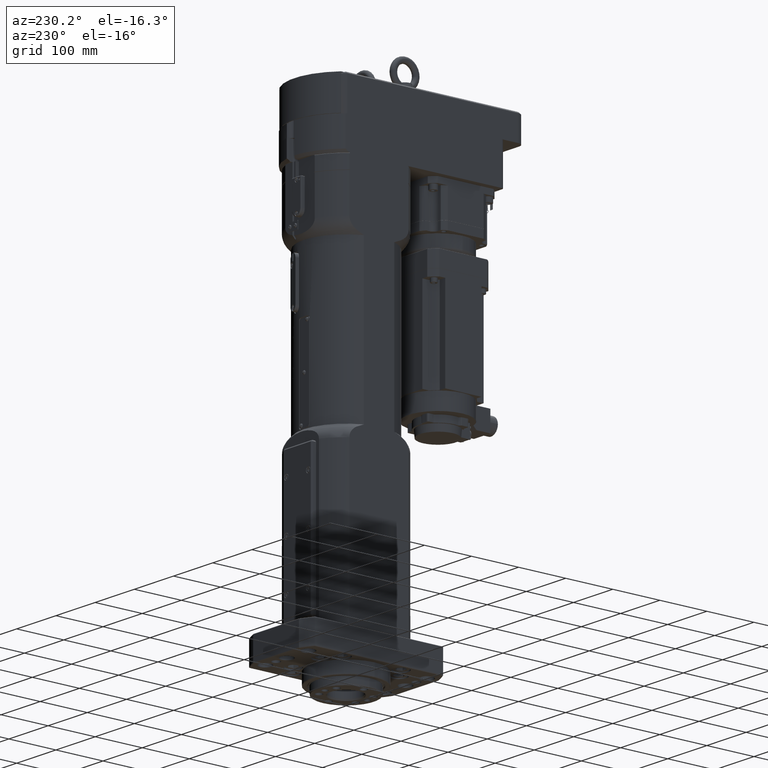
[diagram: clean part render]
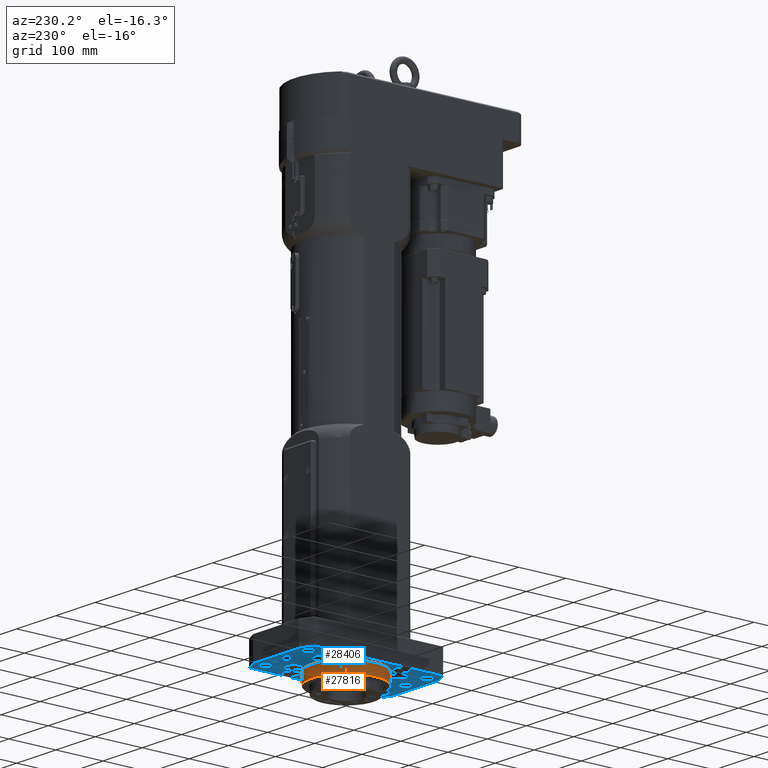
[diagram: same view with the hole feature highlighted: cylindrical wall and planar end face, labeled with their STEP entity ids]
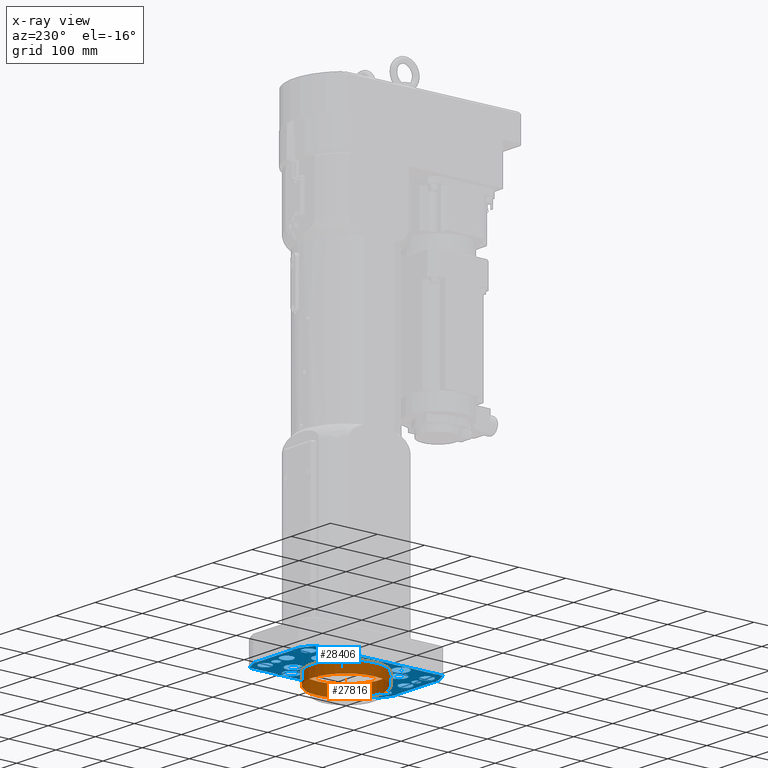
[diagram: x-ray of the same camera — body ghosted, the hole faces saturated]
A machine part, auxiliary view. The highlighted faces form one hole feature of diameter 145 mm: the cylindrical wall (entity #27816, orange) and its adjacent planar end face (entity #28406, blue) — they share a circular edge in the B-rep.
The next image is the same camera in x-ray (body ghosted, the hole faces saturated) — the bore reads through the body.
Wall:
#4697=FACE_BOUND('',#8042,.T.);
#5134=CYLINDRICAL_SURFACE('',#30303,72.5);
#6157=FACE_OUTER_BOUND('',#8041,.T.);
#8041=EDGE_LOOP('',(#20331));
#8042=EDGE_LOOP('',(#20332));
#9914=CIRCLE('',#30302,72.5);
#9915=CIRCLE('',#30304,72.5);
#11941=VERTEX_POINT('',#45608);
#11942=VERTEX_POINT('',#45611);
#15058=EDGE_CURVE('',#11941,#11941,#9914,.T.);
#15059=EDGE_CURVE('',#11942,#11942,#9915,.T.);
#20331=ORIENTED_EDGE('',*,*,#15059,.F.);
#20332=ORIENTED_EDGE('',*,*,#15058,.F.);
#27816=ADVANCED_FACE('',(#6157,#4697),#5134,.T.);
#30302=AXIS2_PLACEMENT_3D('',#45609,#35485,#35486);
#30303=AXIS2_PLACEMENT_3D('',#45610,#35487,#35488);
#30304=AXIS2_PLACEMENT_3D('',#45612,#35489,#35490);
#35485=DIRECTION('center_axis',(-1.5737952727272E-15,-6.46629736812827E-31,
-1.));
#35486=DIRECTION('ref_axis',(1.,-6.87106463012814E-16,-1.57379527272721E-15));
#35487=DIRECTION('center_axis',(-1.5737952727272E-15,-6.46629736812827E-31,
-1.));
#35488=DIRECTION('ref_axis',(1.,-6.87106463012814E-16,-1.57379527272721E-15));
#35489=DIRECTION('center_axis',(1.5737952727272E-15,6.46629736812827E-31,
1.));
#35490=DIRECTION('ref_axis',(1.,-6.87106463012814E-16,-1.57379527272721E-15));
#45608=CARTESIAN_POINT('',(-72.5000000000012,-9.40506814300394E-13,-23.9999999999999));
#45609=CARTESIAN_POINT('Origin',(-1.21002631055144E-12,-9.99200722162641E-13,
-24.0000000000001));
#45610=CARTESIAN_POINT('Origin',(-1.17225522400599E-12,-9.99200722162641E-13,
0.));
#45611=CARTESIAN_POINT('',(-72.5000000000012,-9.40506814300394E-13,1.4210854715202E-13));
#45612=CARTESIAN_POINT('Origin',(-1.17225522400599E-12,-9.99200722162641E-13,
0.));
End face:
#1997=LINE('',#45526,#3616);
#1999=LINE('',#45538,#3618);
#2002=LINE('',#45552,#3621);
#2004=LINE('',#45562,#3623);
#3616=VECTOR('',#35378,10.);
#3618=VECTOR('',#35392,10.);
#3621=VECTOR('',#35407,10.);
#3623=VECTOR('',#35421,10.);
#4861=FACE_BOUND('',#8796,.T.);
#4862=FACE_BOUND('',#8797,.T.);
#4863=FACE_BOUND('',#8798,.T.);
#4864=FACE_BOUND('',#8799,.T.);
#4865=FACE_BOUND('',#8800,.T.);
#4866=FACE_BOUND('',#8801,.T.);
#4867=FACE_BOUND('',#8802,.T.);
#4868=FACE_BOUND('',#8803,.T.);
#4869=FACE_BOUND('',#8804,.T.);
#4870=FACE_BOUND('',#8805,.T.);
#4871=FACE_BOUND('',#8806,.T.);
#4872=FACE_BOUND('',#8807,.T.);
#4873=FACE_BOUND('',#8808,.T.);
#4874=FACE_BOUND('',#8809,.T.);
#4875=FACE_BOUND('',#8810,.T.);
#4876=FACE_BOUND('',#8811,.T.);
#4877=FACE_BOUND('',#8812,.T.);
#6747=FACE_OUTER_BOUND('',#8795,.T.);
#8795=EDGE_LOOP('',(#22955,#22956,#22957,#22958,#22959,#22960,#22961,#22962));
#8796=EDGE_LOOP('',(#22963));
#8797=EDGE_LOOP('',(#22964));
#8798=EDGE_LOOP('',(#22965));
#8799=EDGE_LOOP('',(#22966));
#8800=EDGE_LOOP('',(#22967));
#8801=EDGE_LOOP('',(#22968));
#8802=EDGE_LOOP('',(#22969));
#8803=EDGE_LOOP('',(#22970));
#8804=EDGE_LOOP('',(#22971));
#8805=EDGE_LOOP('',(#22972));
#8806=EDGE_LOOP('',(#22973));
#8807=EDGE_LOOP('',(#22974));
#8808=EDGE_LOOP('',(#22975));
#8809=EDGE_LOOP('',(#22976));
#8810=EDGE_LOOP('',(#22977));
#8811=EDGE_LOOP('',(#22978));
#8812=EDGE_LOOP('',(#22979));
#9886=CIRCLE('',#30253,159.);
#9891=CIRCLE('',#30260,159.);
#9895=CIRCLE('',#30266,159.);
#9900=CIRCLE('',#30273,159.);
#9915=CIRCLE('',#30304,72.5);
#9916=CIRCLE('',#30306,8.);
#9917=CIRCLE('',#30308,8.);
#9918=CIRCLE('',#30310,13.);
#9919=CIRCLE('',#30312,13.);
#9920=CIRCLE('',#30314,13.);
#9921=CIRCLE('',#30316,13.);
#9922=CIRCLE('',#30318,13.);
#9923=CIRCLE('',#30320,13.);
#10300=CIRCLE('',#31278,16.);
#10302=CIRCLE('',#31281,16.);
#10303=CIRCLE('',#31283,16.);
#10304=CIRCLE('',#31284,16.);
#10305=CIRCLE('',#31285,16.);
#10306=CIRCLE('',#31286,16.);
#10307=CIRCLE('',#31287,16.);
#10308=CIRCLE('',#31288,16.);
#11917=VERTEX_POINT('',#45516);
#11918=VERTEX_POINT('',#45517);
#11921=VERTEX_POINT('',#45525);
#11923=VERTEX_POINT('',#45531);
#11925=VERTEX_POINT('',#45537);
#11927=VERTEX_POINT('',#45543);
#11930=VERTEX_POINT('',#45551);
#11932=VERTEX_POINT('',#45557);
#11942=VERTEX_POINT('',#45611);
#11943=VERTEX_POINT('',#45614);
#11944=VERTEX_POINT('',#45617);
#11945=VERTEX_POINT('',#45620);
#11946=VERTEX_POINT('',#45623);
#11947=VERTEX_POINT('',#45626);
#11948=VERTEX_POINT('',#45629);
#11949=VERTEX_POINT('',#45632);
#11950=VERTEX_POINT('',#45635);
#12696=VERTEX_POINT('',#49023);
#12697=VERTEX_POINT('',#49027);
#12698=VERTEX_POINT('',#49030);
#12699=VERTEX_POINT('',#49032);
#12700=VERTEX_POINT('',#49034);
#12701=VERTEX_POINT('',#49036);
#12702=VERTEX_POINT('',#49038);
#12703=VERTEX_POINT('',#49040);
#15011=EDGE_CURVE('',#11917,#11918,#9886,.T.);
#15015=EDGE_CURVE('',#11918,#11921,#1997,.T.);
#15018=EDGE_CURVE('',#11921,#11923,#9891,.T.);
#15021=EDGE_CURVE('',#11923,#11925,#1999,.T.);
#15024=EDGE_CURVE('',#11925,#11927,#9895,.T.);
#15028=EDGE_CURVE('',#11927,#11930,#2002,.T.);
#15031=EDGE_CURVE('',#11930,#11932,#9900,.T.);
#15034=EDGE_CURVE('',#11932,#11917,#2004,.T.);
#15059=EDGE_CURVE('',#11942,#11942,#9915,.T.);
#15060=EDGE_CURVE('',#11943,#11943,#9916,.T.);
#15061=EDGE_CURVE('',#11944,#11944,#9917,.T.);
#15062=EDGE_CURVE('',#11945,#11945,#9918,.T.);
#15063=EDGE_CURVE('',#11946,#11946,#9919,.T.);
#15064=EDGE_CURVE('',#11947,#11947,#9920,.T.);
#15065=EDGE_CURVE('',#11948,#11948,#9921,.T.);
#15066=EDGE_CURVE('',#11949,#11949,#9922,.T.);
#15067=EDGE_CURVE('',#11950,#11950,#9923,.T.);
#16250=EDGE_CURVE('',#12696,#12696,#10300,.T.);
#16252=EDGE_CURVE('',#12697,#12697,#10302,.T.);
#16253=EDGE_CURVE('',#12698,#12698,#10303,.T.);
#16254=EDGE_CURVE('',#12699,#12699,#10304,.T.);
#16255=EDGE_CURVE('',#12700,#12700,#10305,.T.);
#16256=EDGE_CURVE('',#12701,#12701,#10306,.T.);
#16257=EDGE_CURVE('',#12702,#12702,#10307,.T.);
#16258=EDGE_CURVE('',#12703,#12703,#10308,.T.);
#22955=ORIENTED_EDGE('',*,*,#15011,.F.);
#22956=ORIENTED_EDGE('',*,*,#15034,.F.);
#22957=ORIENTED_EDGE('',*,*,#15031,.F.);
#22958=ORIENTED_EDGE('',*,*,#15028,.F.);
#22959=ORIENTED_EDGE('',*,*,#15024,.F.);
#22960=ORIENTED_EDGE('',*,*,#15021,.F.);
#22961=ORIENTED_EDGE('',*,*,#15018,.F.);
#22962=ORIENTED_EDGE('',*,*,#15015,.F.);
#22963=ORIENTED_EDGE('',*,*,#16253,.T.);
#22964=ORIENTED_EDGE('',*,*,#16254,.T.);
#22965=ORIENTED_EDGE('',*,*,#16255,.T.);
#22966=ORIENTED_EDGE('',*,*,#16256,.T.);
#22967=ORIENTED_EDGE('',*,*,#16257,.T.);
#22968=ORIENTED_EDGE('',*,*,#16252,.T.);
#22969=ORIENTED_EDGE('',*,*,#16250,.T.);
#22970=ORIENTED_EDGE('',*,*,#15059,.T.);
#22971=ORIENTED_EDGE('',*,*,#15067,.T.);
#22972=ORIENTED_EDGE('',*,*,#15066,.T.);
#22973=ORIENTED_EDGE('',*,*,#15065,.T.);
#22974=ORIENTED_EDGE('',*,*,#15064,.T.);
#22975=ORIENTED_EDGE('',*,*,#15063,.T.);
#22976=ORIENTED_EDGE('',*,*,#15062,.T.);
#22977=ORIENTED_EDGE('',*,*,#15061,.T.);
#22978=ORIENTED_EDGE('',*,*,#15060,.T.);
#22979=ORIENTED_EDGE('',*,*,#16258,.T.);
#25244=PLANE('',#31282);
#28406=ADVANCED_FACE('',(#6747,#4861,#4862,#4863,#4864,#4865,#4866,#4867,
#4868,#4869,#4870,#4871,#4872,#4873,#4874,#4875,#4876,#4877),#25244,.T.);
#30253=AXIS2_PLACEMENT_3D('',#45518,#35368,#35369);
#30260=AXIS2_PLACEMENT_3D('',#45532,#35384,#35385);
#30266=AXIS2_PLACEMENT_3D('',#45544,#35398,#35399);
#30273=AXIS2_PLACEMENT_3D('',#45558,#35414,#35415);
#30304=AXIS2_PLACEMENT_3D('',#45612,#35489,#35490);
#30306=AXIS2_PLACEMENT_3D('',#45615,#35493,#35494);
#30308=AXIS2_PLACEMENT_3D('',#45618,#35497,#35498);
#30310=AXIS2_PLACEMENT_3D('',#45621,#35501,#35502);
#30312=AXIS2_PLACEMENT_3D('',#45624,#35505,#35506);
#30314=AXIS2_PLACEMENT_3D('',#45627,#35509,#35510);
#30316=AXIS2_PLACEMENT_3D('',#45630,#35513,#35514);
#30318=AXIS2_PLACEMENT_3D('',#45633,#35517,#35518);
#30320=AXIS2_PLACEMENT_3D('',#45636,#35521,#35522);
#31278=AXIS2_PLACEMENT_3D('',#49024,#38076,#38077);
#31281=AXIS2_PLACEMENT_3D('',#49028,#38082,#38083);
#31282=AXIS2_PLACEMENT_3D('',#49029,#38084,#38085);
#31283=AXIS2_PLACEMENT_3D('',#49031,#38086,#38087);
#31284=AXIS2_PLACEMENT_3D('',#49033,#38088,#38089);
#31285=AXIS2_PLACEMENT_3D('',#49035,#38090,#38091);
#31286=AXIS2_PLACEMENT_3D('',#49037,#38092,#38093);
#31287=AXIS2_PLACEMENT_3D('',#49039,#38094,#38095);
#31288=AXIS2_PLACEMENT_3D('',#49041,#38096,#38097);
#35368=DIRECTION('center_axis',(1.5737952727272E-15,6.46629736812827E-31,
1.));
#35369=DIRECTION('ref_axis',(-1.,6.87106463012814E-16,1.57379527272721E-15));
#35378=DIRECTION('',(-6.21883802912692E-16,-1.,1.62534752602244E-30));
#35384=DIRECTION('center_axis',(1.5737952727272E-15,6.46629736812827E-31,
1.));
#35385=DIRECTION('ref_axis',(-1.,6.87106463012814E-16,1.57379527272721E-15));
#35392=DIRECTION('',(1.,-5.347627155403E-16,-1.5737952727272E-15));
#35398=DIRECTION('center_axis',(1.5737952727272E-15,6.46629736812827E-31,
1.));
#35399=DIRECTION('ref_axis',(1.,-6.87106463012814E-16,-1.57379527272721E-15));
#35407=DIRECTION('',(7.52329123112936E-16,1.,-1.83064175430297E-30));
#35414=DIRECTION('center_axis',(1.5737952727272E-15,6.46629736812827E-31,
1.));
#35415=DIRECTION('ref_axis',(1.,-6.87106463012814E-16,-1.57379527272721E-15));
#35421=DIRECTION('',(-1.,6.87106463012814E-16,1.5737952727272E-15));
#35489=DIRECTION('center_axis',(1.5737952727272E-15,6.46629736812827E-31,
1.));
#35490=DIRECTION('ref_axis',(1.,-6.87106463012814E-16,-1.57379527272721E-15));
#35493=DIRECTION('center_axis',(1.5737952727272E-15,6.46629736812827E-31,
1.));
#35494=DIRECTION('ref_axis',(-1.,6.87106463012814E-16,1.57379527272721E-15));
#35497=DIRECTION('center_axis',(1.5737952727272E-15,6.46629736812827E-31,
1.));
#35498=DIRECTION('ref_axis',(-1.,6.87106463012814E-16,1.57379527272721E-15));
#35501=DIRECTION('center_axis',(1.5737952727272E-15,6.46629736812827E-31,
1.));
#35502=DIRECTION('ref_axis',(-1.,6.87106463012814E-16,1.5737952727272E-15));
#35505=DIRECTION('center_axis',(1.5737952727272E-15,6.46629736812827E-31,
1.));
#35506=DIRECTION('ref_axis',(-1.,6.87106463012814E-16,1.5737952727272E-15));
#35509=DIRECTION('center_axis',(1.5737952727272E-15,6.46629736812827E-31,
1.));
#35510=DIRECTION('ref_axis',(-1.,6.87106463012814E-16,1.5737952727272E-15));
#35513=DIRECTION('center_axis',(1.5737952727272E-15,6.46629736812827E-31,
1.));
#35514=DIRECTION('ref_axis',(-1.,6.87106463012814E-16,1.5737952727272E-15));
#35517=DIRECTION('center_axis',(1.5737952727272E-15,6.46629736812827E-31,
1.));
#35518=DIRECTION('ref_axis',(-1.,6.87106463012814E-16,1.5737952727272E-15));
#35521=DIRECTION('center_axis',(1.5737952727272E-15,6.46629736812827E-31,
1.));
#35522=DIRECTION('ref_axis',(-1.,6.87106463012814E-16,1.5737952727272E-15));
#38076=DIRECTION('center_axis',(1.5737952727272E-15,6.46629736812827E-31,
1.));
#38077=DIRECTION('ref_axis',(-1.,6.87106463012814E-16,1.57379527272721E-15));
#38082=DIRECTION('center_axis',(1.5737952727272E-15,6.46629736812827E-31,
1.));
#38083=DIRECTION('ref_axis',(-1.,6.87106463012814E-16,1.57379527272721E-15));
#38084=DIRECTION('center_axis',(-1.5737952727272E-15,-6.46629736812827E-31,
-1.));
#38085=DIRECTION('ref_axis',(-1.,6.87106463012817E-16,1.5737952727272E-15));
#38086=DIRECTION('center_axis',(1.5737952727272E-15,6.46629736812827E-31,
1.));
#38087=DIRECTION('ref_axis',(-1.,6.87106463012814E-16,1.57379527272721E-15));
#38088=DIRECTION('center_axis',(1.5737952727272E-15,6.46629736812827E-31,
1.));
#38089=DIRECTION('ref_axis',(-1.,6.87106463012814E-16,1.57379527272721E-15));
#38090=DIRECTION('center_axis',(1.5737952727272E-15,6.46629736812827E-31,
1.));
#38091=DIRECTION('ref_axis',(-1.,6.87106463012814E-16,1.57379527272721E-15));
#38092=DIRECTION('center_axis',(1.5737952727272E-15,6.46629736812827E-31,
1.));
#38093=DIRECTION('ref_axis',(-1.,6.87106463012814E-16,1.57379527272721E-15));
#38094=DIRECTION('center_axis',(1.5737952727272E-15,6.46629736812827E-31,
1.));
#38095=DIRECTION('ref_axis',(-1.,6.87106463012814E-16,1.57379527272721E-15));
#38096=DIRECTION('center_axis',(1.5737952727272E-15,6.46629736812827E-31,
1.));
#38097=DIRECTION('ref_axis',(-1.,6.87106463012814E-16,1.57379527272721E-15));
#45516=CARTESIAN_POINT('',(-58.1119609030716,147.999999999999,1.4210854715202E-13));
#45517=CARTESIAN_POINT('',(-83.0000000000011,135.617108065317,1.4210854715202E-13));
#45518=CARTESIAN_POINT('Origin',(-1.17225522400599E-12,-9.99200722162641E-13,
0.));
#45525=CARTESIAN_POINT('',(-83.0000000000013,-135.617108065318,1.4210854715202E-13));
#45526=CARTESIAN_POINT('',(-83.0000000000012,-68.0881781221977,1.4210854715202E-13));
#45531=CARTESIAN_POINT('',(-58.1119609030717,-148.000000000001,1.4210854715202E-13));
#45532=CARTESIAN_POINT('Origin',(-1.17225522400599E-12,-9.99200722162641E-13,
0.));
#45537=CARTESIAN_POINT('',(58.1119609030693,-148.000000000001,-1.4210854715202E-13));
#45538=CARTESIAN_POINT('',(29.1504716942956,-148.000000000001,0.));
#45543=CARTESIAN_POINT('',(82.9999999999987,-135.617108065319,-1.4210854715202E-13));
#45544=CARTESIAN_POINT('Origin',(-1.17225522400599E-12,-9.99200722162641E-13,
0.));
#45551=CARTESIAN_POINT('',(82.999999999999,135.617108065316,-1.4210854715202E-13));
#45552=CARTESIAN_POINT('',(82.9999999999989,68.0881781221957,-1.4210854715202E-13));
#45557=CARTESIAN_POINT('',(58.1119609030695,147.999999999999,-1.4210854715202E-13));
#45558=CARTESIAN_POINT('Origin',(-1.17225522400599E-12,-9.99200722162641E-13,
0.));
#45562=CARTESIAN_POINT('',(-29.1504716942979,147.999999999999,0.));
#45611=CARTESIAN_POINT('',(-72.5000000000012,-9.40506814300394E-13,1.4210854715202E-13));
#45612=CARTESIAN_POINT('Origin',(-1.17225522400599E-12,-9.99200722162641E-13,
0.));
#45614=CARTESIAN_POINT('',(-35.5000000000013,-126.000000000001,0.));
#45615=CARTESIAN_POINT('Origin',(-27.5000000000013,-126.000000000001,0.));
#45617=CARTESIAN_POINT('',(19.4999999999989,125.999999999999,0.));
#45618=CARTESIAN_POINT('Origin',(27.4999999999989,125.999999999999,0.));
#45620=CARTESIAN_POINT('',(-68.0000000000011,125.999999999999,1.4210854715202E-13));
#45621=CARTESIAN_POINT('Origin',(-55.0000000000011,125.999999999999,1.4210854715202E-13));
#45623=CARTESIAN_POINT('',(41.9999999999988,-126.000000000001,0.));
#45624=CARTESIAN_POINT('Origin',(54.9999999999988,-126.000000000001,-1.4210854715202E-13));
#45626=CARTESIAN_POINT('',(-13.0000000000013,-126.000000000001,0.));
#45627=CARTESIAN_POINT('Origin',(-1.25883063834561E-12,-126.000000000001,
0.));
#45629=CARTESIAN_POINT('',(-68.0000000000012,-126.000000000001,1.4210854715202E-13));
#45630=CARTESIAN_POINT('Origin',(-55.0000000000012,-126.000000000001,1.4210854715202E-13));
#45632=CARTESIAN_POINT('',(-13.0000000000011,125.999999999999,0.));
#45633=CARTESIAN_POINT('Origin',(-1.08567980966638E-12,125.999999999999,
0.));
#45635=CARTESIAN_POINT('',(41.9999999999989,125.999999999999,0.));
#45636=CARTESIAN_POINT('Origin',(54.9999999999989,125.999999999999,-1.4210854715202E-13));
#49023=CARTESIAN_POINT('',(-51.1658015640359,-82.8454368107206,1.4210854715202E-13));
#49024=CARTESIAN_POINT('Origin',(-35.1658015640359,-82.8454368107206,0.));
#49027=CARTESIAN_POINT('',(-80.7405820304798,-62.5192533413107,1.4210854715202E-13));
#49028=CARTESIAN_POINT('Origin',(-64.7405820304798,-62.5192533413107,1.4210854715202E-13));
#49029=CARTESIAN_POINT('Origin',(-1.1654720026038E-12,-9.94884126724882E-13,
0.));
#49030=CARTESIAN_POINT('',(48.7405820304774,-62.5192533413108,-1.4210854715202E-13));
#49031=CARTESIAN_POINT('Origin',(64.7405820304774,-62.5192533413108,-1.4210854715202E-13));
#49032=CARTESIAN_POINT('',(19.1658015640334,-82.8454368107207,0.));
#49033=CARTESIAN_POINT('Origin',(35.1658015640334,-82.8454368107207,0.));
#49034=CARTESIAN_POINT('',(19.1658015640335,82.8454368107186,0.));
#49035=CARTESIAN_POINT('Origin',(35.1658015640335,82.8454368107186,0.));
#49036=CARTESIAN_POINT('',(-51.1658015640358,82.8454368107187,1.4210854715202E-13));
#49037=CARTESIAN_POINT('Origin',(-35.1658015640358,82.8454368107187,0.));
#49038=CARTESIAN_POINT('',(-80.7405820304797,62.5192533413088,1.4210854715202E-13));
#49039=CARTESIAN_POINT('Origin',(-64.7405820304797,62.5192533413088,1.4210854715202E-13));
#49040=CARTESIAN_POINT('',(48.7405820304775,62.5192533413087,-1.4210854715202E-13));
#49041=CARTESIAN_POINT('Origin',(64.7405820304775,62.5192533413087,-1.4210854715202E-13));